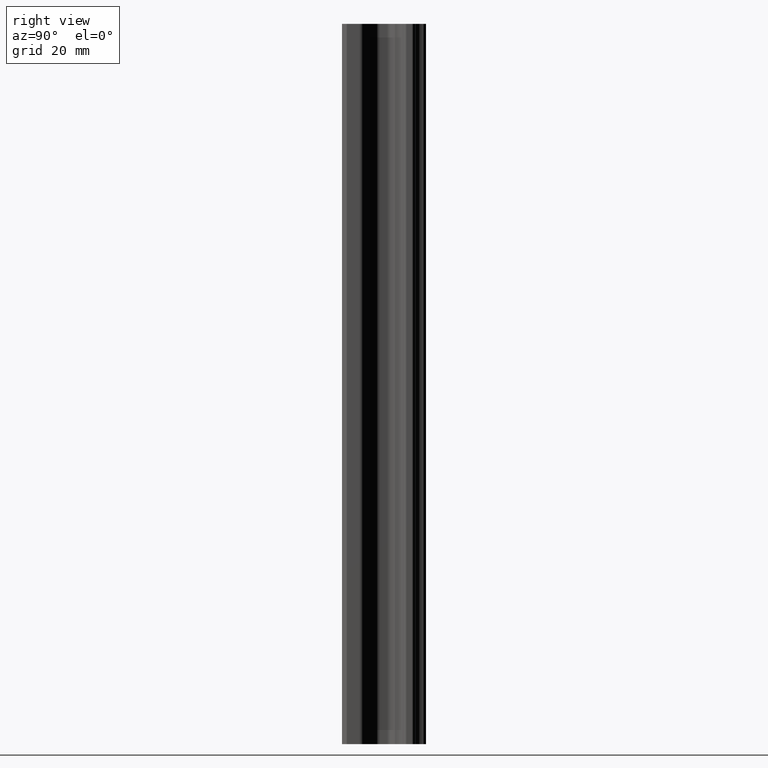
[diagram: clean part render]
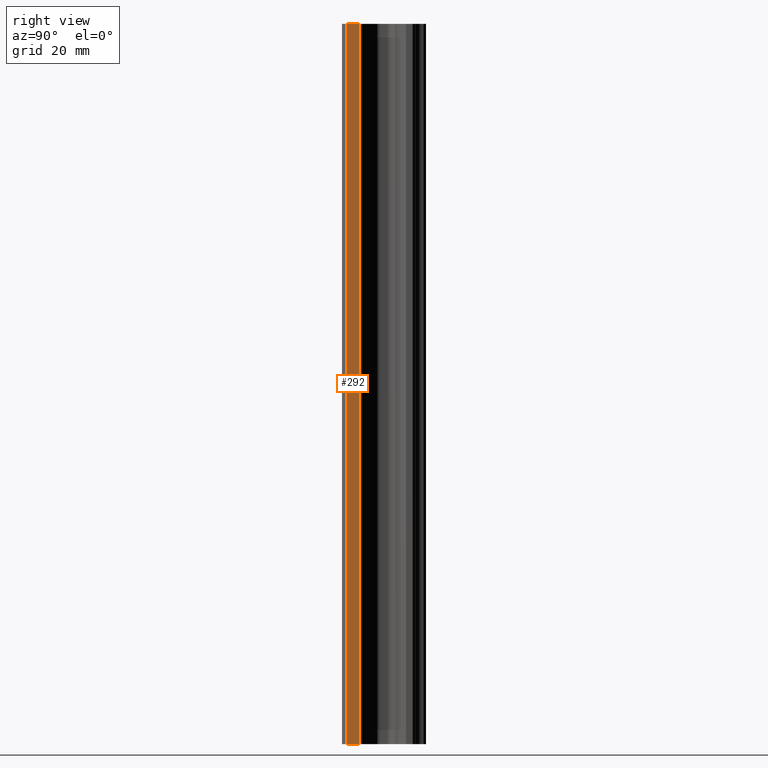
[diagram: same view with one face highlighted and labeled with its STEP entity id]
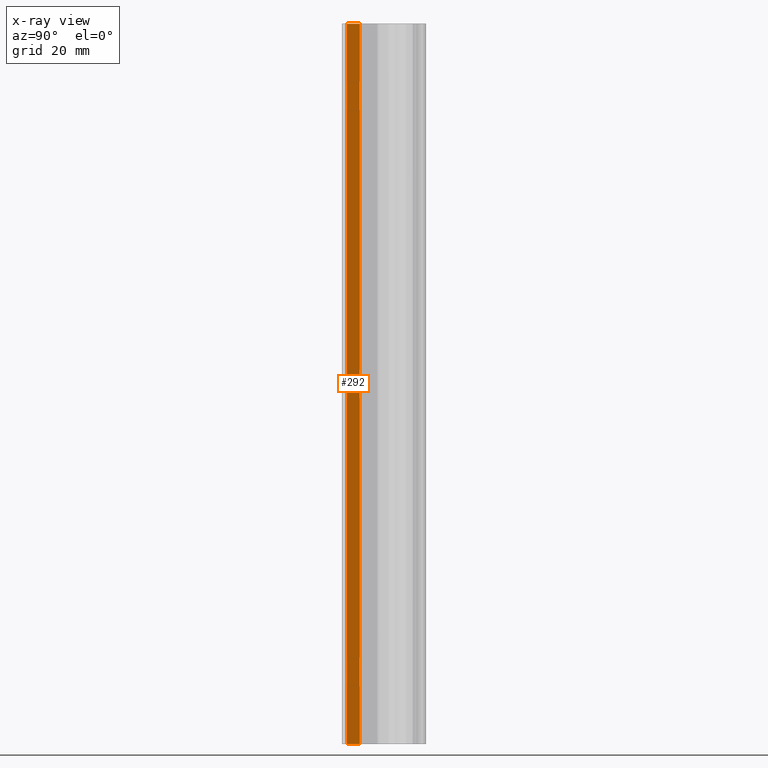
[diagram: x-ray of the same camera — body ghosted, the highlighted face saturated]
A machine part, right view. The second image highlights one B-rep face of the part: STEP entity #292.
The next image is the same camera in x-ray: the body ghosted, the highlighted face saturated — about 0% of this face is hidden behind the body in this view.
In plain terms, the highlighted planar face has unit normal (1, 0, 0).
Its self-contained STEP definition (entity closure, byte-faithful):
#130 = VERTEX_POINT ( 'NONE', #450 ) ;
#171 = EDGE_CURVE ( 'NONE', #172, #130, #499, .T. ) ;
#172 = VERTEX_POINT ( 'NONE', #495 ) ;
#292 = ADVANCED_FACE ( 'NONE', ( #724 ), #723, .T. ) ;
#293 = EDGE_LOOP ( 'NONE', ( #294, #342, #344, #345 ) ) ;
#294 = ORIENTED_EDGE ( 'NONE', *, *, #295, .F. ) ;
#295 = EDGE_CURVE ( 'NONE', #296, #297, #718, .T. ) ;
#296 = VERTEX_POINT ( 'NONE', #714 ) ;
#297 = VERTEX_POINT ( 'NONE', #713 ) ;
#342 = ORIENTED_EDGE ( 'NONE', *, *, #343, .T. ) ;
#343 = EDGE_CURVE ( 'NONE', #296, #172, #837, .T. ) ;
#344 = ORIENTED_EDGE ( 'NONE', *, *, #171, .T. ) ;
#345 = ORIENTED_EDGE ( 'NONE', *, *, #346, .F. ) ;
#346 = EDGE_CURVE ( 'NONE', #297, #130, #833, .T. ) ;
#450 = CARTESIAN_POINT ( 'NONE',  ( 10.00000000000000000, -13.84349295120000000, 75.00000000000000000 ) ) ;
#495 = CARTESIAN_POINT ( 'NONE',  ( 10.00000000000000000, -13.84349295120000000, -75.00000000000000000 ) ) ;
#496 = DIRECTION ( 'NONE',  ( 0.0000000000000000000, 0.0000000000000000000, 1.000000000000000000 ) ) ;
#497 = VECTOR ( 'NONE', #496, 1000.000000000000000 ) ;
#498 = CARTESIAN_POINT ( 'NONE',  ( 10.00000000000000000, -13.84349295120000000, -75.00000000000000000 ) ) ;
#499 = LINE ( 'NONE', #498, #497 ) ;
#713 = CARTESIAN_POINT ( 'NONE',  ( 10.00000000000000200, -16.50000000000000000, 75.00000000000002800 ) ) ;
#714 = CARTESIAN_POINT ( 'NONE',  ( 10.00000000000000200, -16.50000000000000000, -74.99999999999998600 ) ) ;
#715 = DIRECTION ( 'NONE',  ( 0.0000000000000000000, 0.0000000000000000000, 1.000000000000000000 ) ) ;
#716 = VECTOR ( 'NONE', #715, 1000.000000000000000 ) ;
#717 = CARTESIAN_POINT ( 'NONE',  ( 10.00000000000000200, -16.50000000000000000, -75.00000000000000000 ) ) ;
#718 = LINE ( 'NONE', #717, #716 ) ;
#719 = DIRECTION ( 'NONE',  ( 0.0000000000000000000, 0.0000000000000000000, -1.000000000000000000 ) ) ;
#720 = DIRECTION ( 'NONE',  ( 1.000000000000000000, 0.0000000000000000000, 0.0000000000000000000 ) ) ;
#721 = CARTESIAN_POINT ( 'NONE',  ( 10.00000000000000000, -16.50000000000000000, -75.00000000000000000 ) ) ;
#722 = AXIS2_PLACEMENT_3D ( 'NONE', #721, #720, #719 ) ;
#723 = PLANE ( 'NONE',  #722 ) ;
#724 = FACE_OUTER_BOUND ( 'NONE', #293, .T. ) ;
#830 = DIRECTION ( 'NONE',  ( 0.0000000000000000000, 1.000000000000000000, 0.0000000000000000000 ) ) ;
#831 = VECTOR ( 'NONE', #830, 1000.000000000000000 ) ;
#832 = CARTESIAN_POINT ( 'NONE',  ( 10.00000000000000000, 0.0000000000000000000, 75.00000000000000000 ) ) ;
#833 = LINE ( 'NONE', #832, #831 ) ;
#834 = DIRECTION ( 'NONE',  ( 0.0000000000000000000, 1.000000000000000000, 0.0000000000000000000 ) ) ;
#835 = VECTOR ( 'NONE', #834, 1000.000000000000000 ) ;
#836 = CARTESIAN_POINT ( 'NONE',  ( 10.00000000000000000, 0.0000000000000000000, -75.00000000000000000 ) ) ;
#837 = LINE ( 'NONE', #836, #835 ) ;